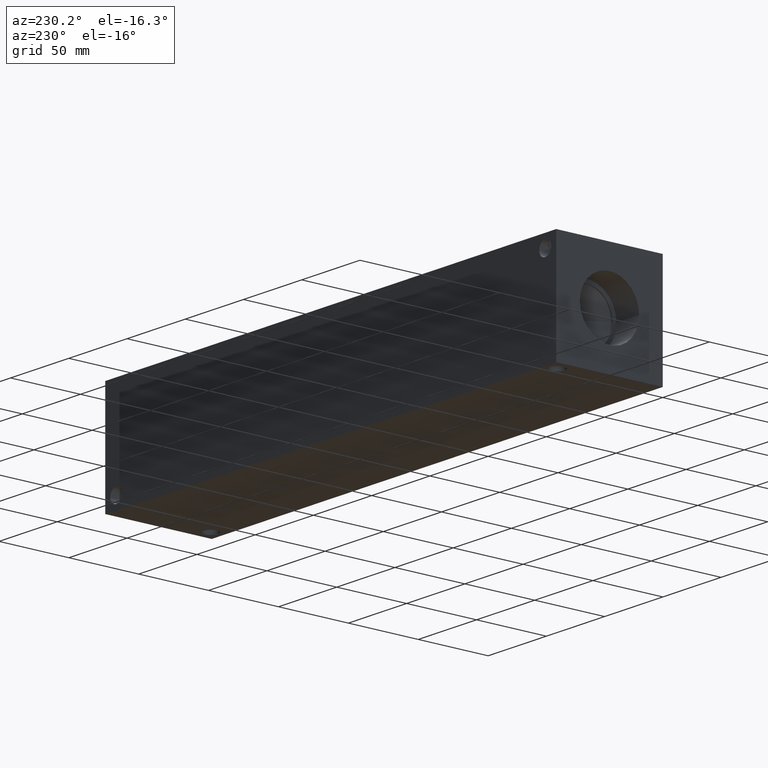
[diagram: clean part render]
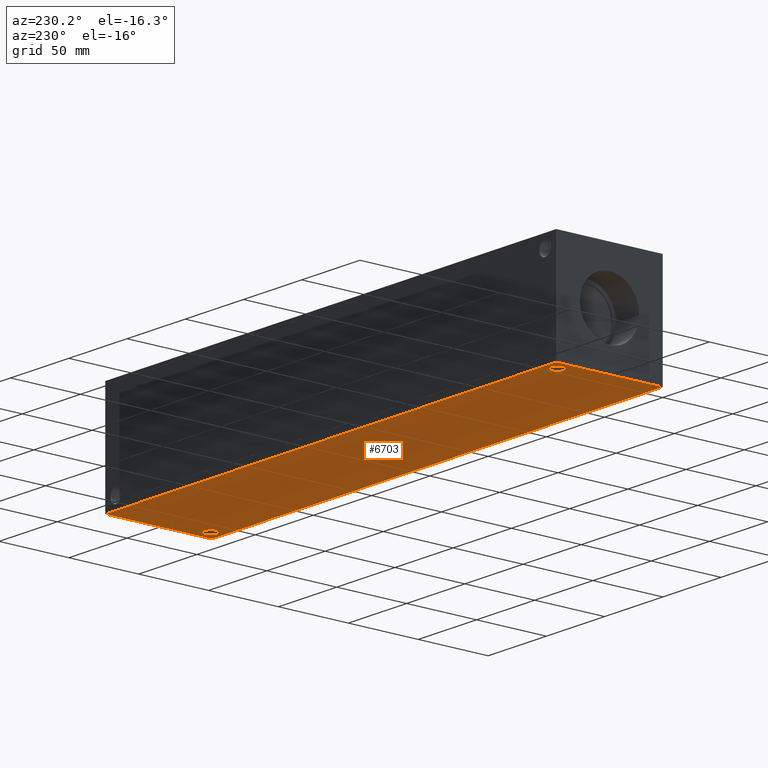
[diagram: same view with one face highlighted and labeled with its STEP entity id]
A machine part, auxiliary view. The second image highlights one B-rep face of the part: STEP entity #6703.
In plain terms, the highlighted planar face has unit normal (0, 0, 1).
Its self-contained STEP definition (entity closure, byte-faithful):
#73=CIRCLE('',#6978,5.1562);
#74=CIRCLE('',#6980,5.1562);
#149=FACE_BOUND('',#1102,.T.);
#150=FACE_BOUND('',#1103,.T.);
#378=PLANE('',#7033);
#716=FACE_OUTER_BOUND('',#1101,.T.);
#1101=EDGE_LOOP('',(#5985,#5986,#5987,#5988));
#1102=EDGE_LOOP('',(#5989));
#1103=EDGE_LOOP('',(#5990));
#1779=LINE('',#11294,#2462);
#1782=LINE('',#11299,#2465);
#1784=LINE('',#11303,#2467);
#1786=LINE('',#11306,#2469);
#2462=VECTOR('',#8333,10.);
#2465=VECTOR('',#8338,10.);
#2467=VECTOR('',#8342,10.);
#2469=VECTOR('',#8346,10.);
#3214=VERTEX_POINT('',#11190);
#3215=VERTEX_POINT('',#11194);
#3248=VERTEX_POINT('',#11292);
#3249=VERTEX_POINT('',#11293);
#3250=VERTEX_POINT('',#11298);
#3251=VERTEX_POINT('',#11302);
#4112=EDGE_CURVE('',#3214,#3214,#73,.T.);
#4114=EDGE_CURVE('',#3215,#3215,#74,.T.);
#4157=EDGE_CURVE('',#3248,#3249,#1779,.T.);
#4160=EDGE_CURVE('',#3250,#3248,#1782,.T.);
#4162=EDGE_CURVE('',#3251,#3250,#1784,.T.);
#4164=EDGE_CURVE('',#3249,#3251,#1786,.T.);
#5985=ORIENTED_EDGE('',*,*,#4164,.F.);
#5986=ORIENTED_EDGE('',*,*,#4157,.F.);
#5987=ORIENTED_EDGE('',*,*,#4160,.F.);
#5988=ORIENTED_EDGE('',*,*,#4162,.F.);
#5989=ORIENTED_EDGE('',*,*,#4112,.T.);
#5990=ORIENTED_EDGE('',*,*,#4114,.T.);
#6703=ADVANCED_FACE('',(#716,#149,#150),#378,.F.);
#6978=AXIS2_PLACEMENT_3D('',#11192,#8215,#8216);
#6980=AXIS2_PLACEMENT_3D('',#11196,#8220,#8221);
#7033=AXIS2_PLACEMENT_3D('',#11308,#8349,#8350);
#8215=DIRECTION('center_axis',(0.,0.,1.));
#8216=DIRECTION('ref_axis',(1.,0.,0.));
#8220=DIRECTION('center_axis',(0.,0.,1.));
#8221=DIRECTION('ref_axis',(1.,0.,0.));
#8333=DIRECTION('',(0.,-1.,0.));
#8338=DIRECTION('',(-1.,0.,0.));
#8342=DIRECTION('',(0.,1.,0.));
#8346=DIRECTION('',(1.,0.,0.));
#8349=DIRECTION('center_axis',(0.,0.,1.));
#8350=DIRECTION('ref_axis',(1.,0.,0.));
#11190=CARTESIAN_POINT('',(372.6688,8.7376,0.));
#11192=CARTESIAN_POINT('Origin',(377.825,8.7376,0.));
#11194=CARTESIAN_POINT('',(4.3688,67.4624,0.));
#11196=CARTESIAN_POINT('Origin',(9.525,67.4624,0.));
#11292=CARTESIAN_POINT('',(0.,76.2,0.));
#11293=CARTESIAN_POINT('',(0.,0.,0.));
#11294=CARTESIAN_POINT('',(0.,76.2,0.));
#11298=CARTESIAN_POINT('',(387.35,76.2,0.));
#11299=CARTESIAN_POINT('',(387.35,76.2,0.));
#11302=CARTESIAN_POINT('',(387.35,0.,0.));
#11303=CARTESIAN_POINT('',(387.35,0.,0.));
#11306=CARTESIAN_POINT('',(0.,0.,0.));
#11308=CARTESIAN_POINT('Origin',(193.675,38.1,0.));